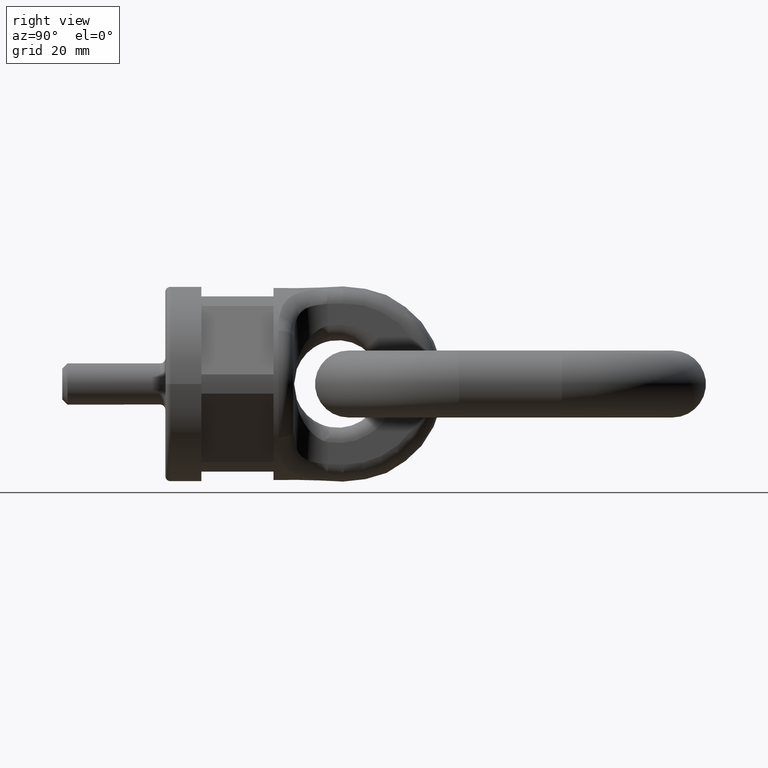
[diagram: clean part render]
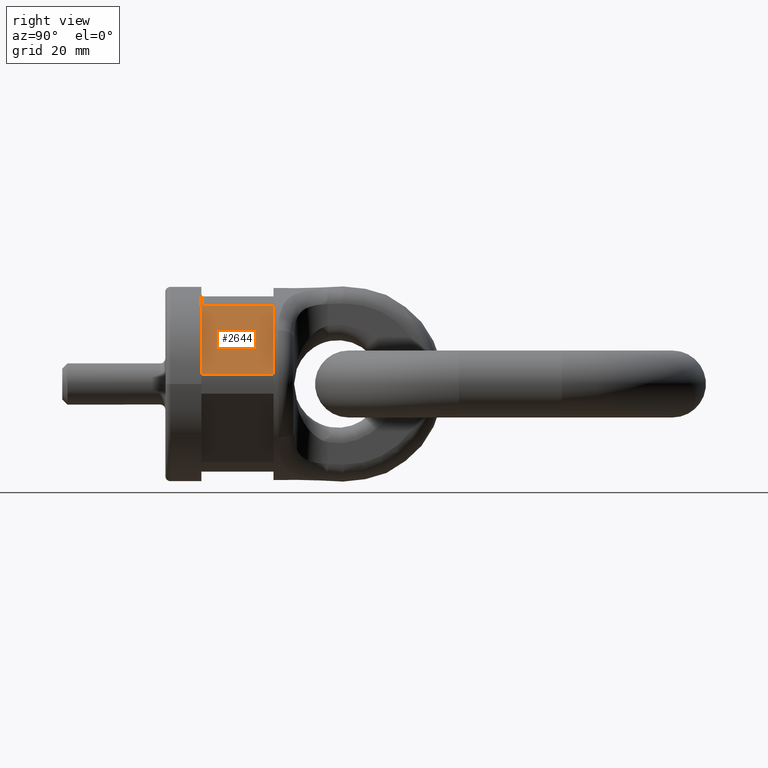
[diagram: same view with one face highlighted and labeled with its STEP entity id]
A machine part, right view. The second image highlights one B-rep face of the part: STEP entity #2644.
In plain terms, the highlighted planar face has unit normal (0.866, 0, 0.5).
Its self-contained STEP definition (entity closure, byte-faithful):
#1802=FACE_OUTER_BOUND('',#3067,.T.);
#2033=LINE('',#6569,#2289);
#2051=LINE('',#6621,#2307);
#2052=LINE('',#6623,#2308);
#2053=LINE('',#6625,#2309);
#2289=VECTOR('',#5811,1.);
#2307=VECTOR('',#5855,1.);
#2308=VECTOR('',#5856,1.);
#2309=VECTOR('',#5857,1.);
#2644=ADVANCED_FACE('',(#1802),#2886,.T.);
#2886=PLANE('',#5613);
#3067=EDGE_LOOP('',(#3376,#3377,#3378,#3379));
#3376=ORIENTED_EDGE('',*,*,#4961,.F.);
#3377=ORIENTED_EDGE('',*,*,#4936,.T.);
#3378=ORIENTED_EDGE('',*,*,#4962,.F.);
#3379=ORIENTED_EDGE('',*,*,#4963,.T.);
#4538=VERTEX_POINT('',#6570);
#4539=VERTEX_POINT('',#6571);
#4559=VERTEX_POINT('',#6622);
#4560=VERTEX_POINT('',#6624);
#4936=EDGE_CURVE('',#4538,#4539,#2033,.T.);
#4961=EDGE_CURVE('',#4538,#4559,#2051,.T.);
#4962=EDGE_CURVE('',#4560,#4539,#2052,.T.);
#4963=EDGE_CURVE('',#4560,#4559,#2053,.T.);
#5613=AXIS2_PLACEMENT_3D('',#6626,#5858,#5859);
#5811=DIRECTION('',(0.499999999999999,1.91351062366774E-17,-0.866025403784439));
#5855=DIRECTION('',(-2.4492935982947E-17,1.,0.));
#5856=DIRECTION('',(2.4492935982947E-17,-1.,0.));
#5857=DIRECTION('',(-0.499999999999999,0.,0.866025403784439));
#5858=DIRECTION('',(0.866025403784439,0.,0.499999999999999));
#5859=DIRECTION('',(0.499999999999999,0.,-0.866025403784439));
#6569=CARTESIAN_POINT('',(19.4724318643354,7.,0.272758664047817));
#6570=CARTESIAN_POINT('',(10.8895695744386,7.,15.1387122245161));
#6571=CARTESIAN_POINT('',(18.5552941542323,7.,1.86128777548383));
#6621=CARTESIAN_POINT('',(10.8895695744386,-9.38780506978953E-17,15.1387122245161));
#6622=CARTESIAN_POINT('',(10.8895695744386,21.,15.1387122245161));
#6623=CARTESIAN_POINT('',(18.5552941542323,9.38780506978953E-17,1.86128777548383));
#6624=CARTESIAN_POINT('',(18.5552941542323,21.,1.86128777548383));
#6625=CARTESIAN_POINT('',(19.6299091524472,21.,0.));
#6626=CARTESIAN_POINT('',(19.6299091524472,21.,0.));